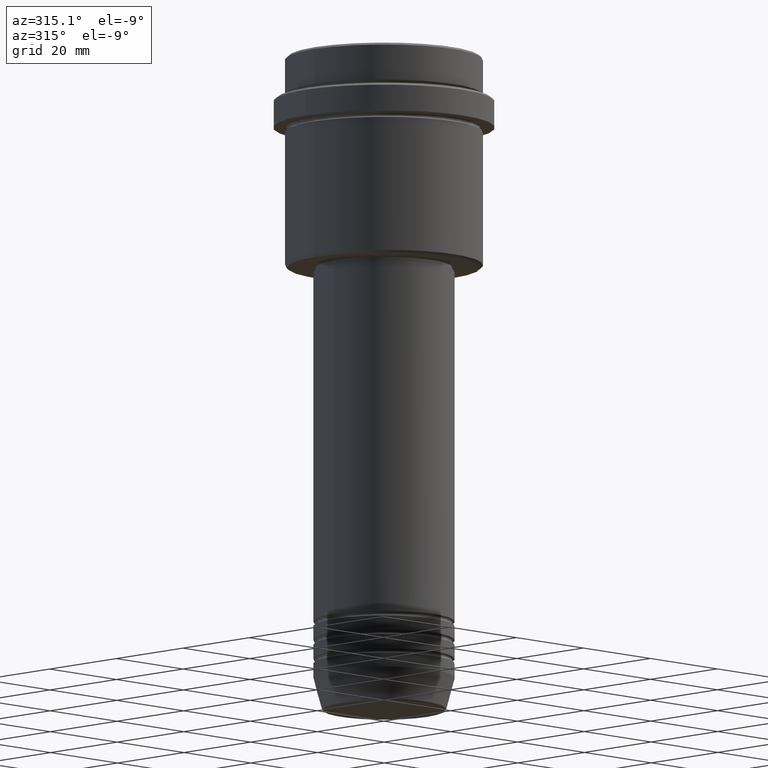
[diagram: clean part render]
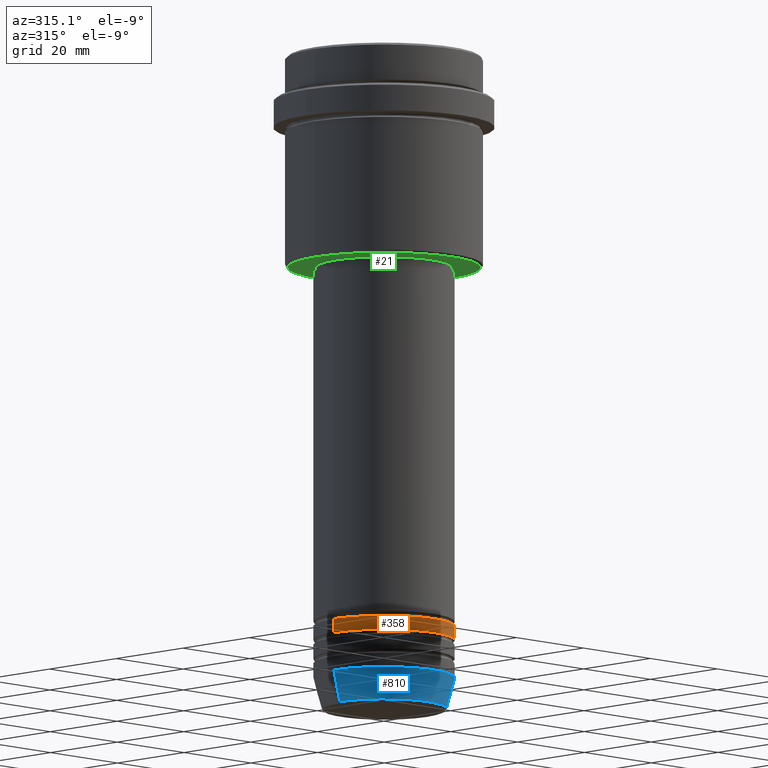
[diagram: same view with three faces highlighted in distinct colors, each labeled with its STEP entity id]
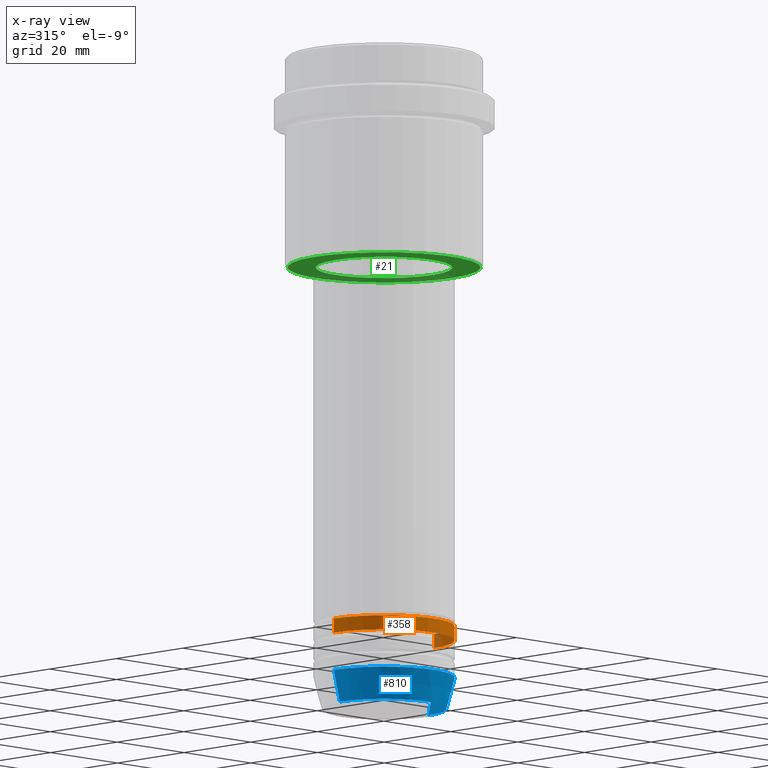
[diagram: x-ray of the same camera — body ghosted, the three highlighted faces saturated]
A machine part, auxiliary view with three faces highlighted in distinct colors.
The next image is the same camera in x-ray (body ghosted, the three faces saturated) — at least one of them is partly hidden behind the body in this view.
Their STEP definitions:

[orange] entity #358 — the highlighted cylindrical surface (partial cylindrical patch) has radius 15 mm, axis along (-0, -0, 1).
#7 = ORIENTED_EDGE ( 'NONE', *, *, #715, .F. ) ;
#19 = DIRECTION ( 'NONE',  ( -0.000000000000000000, -0.000000000000000000, 1.000000000000000000 ) ) ;
#45 = VECTOR ( 'NONE', #1079, 1000.000000000000000 ) ;
#64 = ORIENTED_EDGE ( 'NONE', *, *, #1146, .F. ) ;
#66 = AXIS2_PLACEMENT_3D ( 'NONE', #444, #19, #885 ) ;
#188 = CARTESIAN_POINT ( 'NONE',  ( -15.00000000000000000, 1.836970198721029589E-15, -124.9999999999999005 ) ) ;
#306 = LINE ( 'NONE', #1317, #1007 ) ;
#319 = CIRCLE ( 'NONE', #66, 15.00000000000000000 ) ;
#334 = CARTESIAN_POINT ( 'NONE',  ( 0.000000000000000000, 0.000000000000000000, 0.000000000000000000 ) ) ;
#358 = ADVANCED_FACE ( 'NONE', ( #1204 ), #430, .T. ) ;
#365 = VERTEX_POINT ( 'NONE', #767 ) ;
#385 = EDGE_CURVE ( 'NONE', #640, #578, #306, .T. ) ;
#430 = CYLINDRICAL_SURFACE ( 'NONE', #773, 15.00000000000000000 ) ;
#444 = CARTESIAN_POINT ( 'NONE',  ( 0.000000000000000000, 0.000000000000000000, -124.9999999999999005 ) ) ;
#528 = DIRECTION ( 'NONE',  ( 1.000000000000000000, 0.000000000000000000, 0.000000000000000000 ) ) ;
#578 = VERTEX_POINT ( 'NONE', #596 ) ;
#596 = CARTESIAN_POINT ( 'NONE',  ( 15.00000000000000000, 0.000000000000000000, -121.9999999999999005 ) ) ;
#618 = VERTEX_POINT ( 'NONE', #188 ) ;
#625 = DIRECTION ( 'NONE',  ( 1.000000000000000000, 0.000000000000000000, 0.000000000000000000 ) ) ;
#640 = VERTEX_POINT ( 'NONE', #851 ) ;
#711 = ORIENTED_EDGE ( 'NONE', *, *, #385, .T. ) ;
#712 = LINE ( 'NONE', #831, #45 ) ;
#715 = EDGE_CURVE ( 'NONE', #365, #578, #1391, .T. ) ;
#767 = CARTESIAN_POINT ( 'NONE',  ( -15.00000000000000000, 1.836970198721029589E-15, -121.9999999999999005 ) ) ;
#773 = AXIS2_PLACEMENT_3D ( 'NONE', #334, #1095, #528 ) ;
#831 = CARTESIAN_POINT ( 'NONE',  ( -15.00000000000000000, 1.836970198721029589E-15, 0.000000000000000000 ) ) ;
#851 = CARTESIAN_POINT ( 'NONE',  ( 15.00000000000000000, 0.000000000000000000, -124.9999999999999005 ) ) ;
#885 = DIRECTION ( 'NONE',  ( 1.000000000000000000, 0.000000000000000000, 0.000000000000000000 ) ) ;
#974 = CARTESIAN_POINT ( 'NONE',  ( 0.000000000000000000, 0.000000000000000000, -121.9999999999999005 ) ) ;
#1007 = VECTOR ( 'NONE', #1306, 1000.000000000000000 ) ;
#1079 = DIRECTION ( 'NONE',  ( -0.000000000000000000, -0.000000000000000000, 1.000000000000000000 ) ) ;
#1095 = DIRECTION ( 'NONE',  ( -0.000000000000000000, -0.000000000000000000, 1.000000000000000000 ) ) ;
#1146 = EDGE_CURVE ( 'NONE', #618, #365, #712, .T. ) ;
#1180 = DIRECTION ( 'NONE',  ( -0.000000000000000000, -0.000000000000000000, 1.000000000000000000 ) ) ;
#1204 = FACE_OUTER_BOUND ( 'NONE', #1223, .T. ) ;
#1208 = EDGE_CURVE ( 'NONE', #618, #640, #319, .T. ) ;
#1223 = EDGE_LOOP ( 'NONE', ( #64, #1278, #711, #7 ) ) ;
#1258 = AXIS2_PLACEMENT_3D ( 'NONE', #974, #1180, #625 ) ;
#1278 = ORIENTED_EDGE ( 'NONE', *, *, #1208, .T. ) ;
#1306 = DIRECTION ( 'NONE',  ( -0.000000000000000000, -0.000000000000000000, 1.000000000000000000 ) ) ;
#1317 = CARTESIAN_POINT ( 'NONE',  ( 15.00000000000000000, 0.000000000000000000, 0.000000000000000000 ) ) ;
#1391 = CIRCLE ( 'NONE', #1258, 15.00000000000000000 ) ;

[blue] entity #810 — the highlighted conical surface has half-angle 15 deg.
#18 = DIRECTION ( 'NONE',  ( -0.000000000000000000, -0.000000000000000000, 1.000000000000000000 ) ) ;
#61 = EDGE_CURVE ( 'NONE', #114, #1336, #1094, .T. ) ;
#100 = LINE ( 'NONE', #550, #376 ) ;
#114 = VERTEX_POINT ( 'NONE', #1234 ) ;
#115 = DIRECTION ( 'NONE',  ( -0.000000000000000000, -0.000000000000000000, 1.000000000000000000 ) ) ;
#127 = CARTESIAN_POINT ( 'NONE',  ( 0.000000000000000000, 0.000000000000000000, -133.0000000000000000 ) ) ;
#201 = CARTESIAN_POINT ( 'NONE',  ( -13.22365507213719837, 1.728200442216588780E-15, -139.6294095225512706 ) ) ;
#234 = ORIENTED_EDGE ( 'NONE', *, *, #61, .F. ) ;
#314 = CARTESIAN_POINT ( 'NONE',  ( 15.00000000000000000, 0.000000000000000000, -133.0000000000000000 ) ) ;
#359 = CARTESIAN_POINT ( 'NONE',  ( 13.22365507213719660, 0.000000000000000000, -139.6294095225512706 ) ) ;
#376 = VECTOR ( 'NONE', #756, 1000.000000000000114 ) ;
#392 = EDGE_CURVE ( 'NONE', #642, #114, #100, .T. ) ;
#480 = DIRECTION ( 'NONE',  ( 1.000000000000000000, 0.000000000000000000, 0.000000000000000000 ) ) ;
#547 = VERTEX_POINT ( 'NONE', #359 ) ;
#550 = CARTESIAN_POINT ( 'NONE',  ( -15.00000000000000000, 1.836970198721029589E-15, -133.0000000000000000 ) ) ;
#594 = ORIENTED_EDGE ( 'NONE', *, *, #392, .F. ) ;
#622 = EDGE_LOOP ( 'NONE', ( #594, #1276, #886, #234 ) ) ;
#642 = VERTEX_POINT ( 'NONE', #201 ) ;
#664 = FACE_OUTER_BOUND ( 'NONE', #622, .T. ) ;
#751 = CIRCLE ( 'NONE', #1216, 13.22365507213719660 ) ;
#756 = DIRECTION ( 'NONE',  ( -0.2588190451025210725, 3.169619151431769255E-17, 0.9659258262890680902 ) ) ;
#777 = CONICAL_SURFACE ( 'NONE', #1238, 15.00000000000000000, 0.2617993877991497964 ) ;
#808 = DIRECTION ( 'NONE',  ( 1.000000000000000000, 0.000000000000000000, 0.000000000000000000 ) ) ;
#810 = ADVANCED_FACE ( 'NONE', ( #664 ), #777, .T. ) ;
#872 = LINE ( 'NONE', #1195, #1054 ) ;
#886 = ORIENTED_EDGE ( 'NONE', *, *, #1218, .T. ) ;
#892 = EDGE_CURVE ( 'NONE', #642, #547, #751, .T. ) ;
#914 = CARTESIAN_POINT ( 'NONE',  ( 0.000000000000000000, 0.000000000000000000, -139.6294095225512706 ) ) ;
#923 = DIRECTION ( 'NONE',  ( -0.000000000000000000, -0.000000000000000000, 1.000000000000000000 ) ) ;
#1048 = AXIS2_PLACEMENT_3D ( 'NONE', #1112, #18, #808 ) ;
#1054 = VECTOR ( 'NONE', #1215, 1000.000000000000114 ) ;
#1094 = CIRCLE ( 'NONE', #1048, 15.00000000000000000 ) ;
#1109 = DIRECTION ( 'NONE',  ( 1.000000000000000000, 0.000000000000000000, 0.000000000000000000 ) ) ;
#1112 = CARTESIAN_POINT ( 'NONE',  ( 0.000000000000000000, 0.000000000000000000, -133.0000000000000000 ) ) ;
#1195 = CARTESIAN_POINT ( 'NONE',  ( 15.00000000000000000, 0.000000000000000000, -133.0000000000000000 ) ) ;
#1215 = DIRECTION ( 'NONE',  ( 0.2588190451025210725, 0.000000000000000000, 0.9659258262890680902 ) ) ;
#1216 = AXIS2_PLACEMENT_3D ( 'NONE', #914, #923, #480 ) ;
#1218 = EDGE_CURVE ( 'NONE', #547, #1336, #872, .T. ) ;
#1234 = CARTESIAN_POINT ( 'NONE',  ( -15.00000000000000000, 1.836970198721029589E-15, -133.0000000000000000 ) ) ;
#1238 = AXIS2_PLACEMENT_3D ( 'NONE', #127, #115, #1109 ) ;
#1276 = ORIENTED_EDGE ( 'NONE', *, *, #892, .T. ) ;
#1336 = VERTEX_POINT ( 'NONE', #314 ) ;

[green] entity #21 — the highlighted planar face has unit normal (0, 0, -1).
#5 = PLANE ( 'NONE',  #244 ) ;
#15 = CARTESIAN_POINT ( 'NONE',  ( 20.49999999999997513, 0.000000000000000000, -45.00000000000001421 ) ) ;
#21 = ADVANCED_FACE ( 'NONE', ( #313, #545 ), #5, .T. ) ;
#25 = DIRECTION ( 'NONE',  ( 0.000000000000000000, 0.000000000000000000, -1.000000000000000000 ) ) ;
#26 = DIRECTION ( 'NONE',  ( 0.000000000000000000, 0.000000000000000000, -1.000000000000000000 ) ) ;
#58 = AXIS2_PLACEMENT_3D ( 'NONE', #124, #26, #1334 ) ;
#62 = CIRCLE ( 'NONE', #1190, 20.49999999999997513 ) ;
#70 = EDGE_CURVE ( 'NONE', #344, #339, #1411, .T. ) ;
#89 = EDGE_CURVE ( 'NONE', #324, #455, #315, .T. ) ;
#98 = EDGE_LOOP ( 'NONE', ( #263, #774 ) ) ;
#119 = DIRECTION ( 'NONE',  ( 1.000000000000000000, 0.000000000000000000, 0.000000000000000000 ) ) ;
#124 = CARTESIAN_POINT ( 'NONE',  ( 0.000000000000000000, 0.000000000000000000, -45.00000000000001421 ) ) ;
#182 = AXIS2_PLACEMENT_3D ( 'NONE', #337, #235, #119 ) ;
#235 = DIRECTION ( 'NONE',  ( -0.000000000000000000, -0.000000000000000000, 1.000000000000000000 ) ) ;
#244 = AXIS2_PLACEMENT_3D ( 'NONE', #884, #1308, #748 ) ;
#263 = ORIENTED_EDGE ( 'NONE', *, *, #70, .T. ) ;
#313 = FACE_OUTER_BOUND ( 'NONE', #553, .T. ) ;
#315 = CIRCLE ( 'NONE', #58, 20.49999999999997513 ) ;
#324 = VERTEX_POINT ( 'NONE', #1284 ) ;
#337 = CARTESIAN_POINT ( 'NONE',  ( 0.000000000000000000, 0.000000000000000000, -45.00000000000001421 ) ) ;
#339 = VERTEX_POINT ( 'NONE', #1401 ) ;
#344 = VERTEX_POINT ( 'NONE', #860 ) ;
#353 = CARTESIAN_POINT ( 'NONE',  ( 0.000000000000000000, 0.000000000000000000, -45.00000000000001421 ) ) ;
#452 = DIRECTION ( 'NONE',  ( -0.000000000000000000, -0.000000000000000000, 1.000000000000000000 ) ) ;
#455 = VERTEX_POINT ( 'NONE', #15 ) ;
#467 = EDGE_CURVE ( 'NONE', #455, #324, #62, .T. ) ;
#545 = FACE_BOUND ( 'NONE', #98, .T. ) ;
#553 = EDGE_LOOP ( 'NONE', ( #1331, #1176 ) ) ;
#658 = CIRCLE ( 'NONE', #182, 14.49999999999999467 ) ;
#748 = DIRECTION ( 'NONE',  ( -1.000000000000000000, 0.000000000000000000, -0.000000000000000000 ) ) ;
#769 = AXIS2_PLACEMENT_3D ( 'NONE', #813, #452, #1253 ) ;
#774 = ORIENTED_EDGE ( 'NONE', *, *, #1318, .T. ) ;
#813 = CARTESIAN_POINT ( 'NONE',  ( 0.000000000000000000, 0.000000000000000000, -45.00000000000001421 ) ) ;
#860 = CARTESIAN_POINT ( 'NONE',  ( 14.49999999999999467, 0.000000000000000000, -45.00000000000001421 ) ) ;
#884 = CARTESIAN_POINT ( 'NONE',  ( 0.000000000000000000, 21.00000000000000000, -45.00000000000001421 ) ) ;
#1176 = ORIENTED_EDGE ( 'NONE', *, *, #89, .T. ) ;
#1190 = AXIS2_PLACEMENT_3D ( 'NONE', #353, #25, #1222 ) ;
#1222 = DIRECTION ( 'NONE',  ( -1.000000000000000000, 0.000000000000000000, 0.000000000000000000 ) ) ;
#1253 = DIRECTION ( 'NONE',  ( 1.000000000000000000, 0.000000000000000000, 0.000000000000000000 ) ) ;
#1284 = CARTESIAN_POINT ( 'NONE',  ( -20.49999999999997513, 2.541142108230756691E-15, -45.00000000000001421 ) ) ;
#1308 = DIRECTION ( 'NONE',  ( 0.000000000000000000, 0.000000000000000000, -1.000000000000000000 ) ) ;
#1318 = EDGE_CURVE ( 'NONE', #339, #344, #658, .T. ) ;
#1331 = ORIENTED_EDGE ( 'NONE', *, *, #467, .T. ) ;
#1334 = DIRECTION ( 'NONE',  ( -1.000000000000000000, 0.000000000000000000, 0.000000000000000000 ) ) ;
#1401 = CARTESIAN_POINT ( 'NONE',  ( -14.49999999999999467, 1.775737858763661620E-15, -45.00000000000001421 ) ) ;
#1411 = CIRCLE ( 'NONE', #769, 14.49999999999999467 ) ;